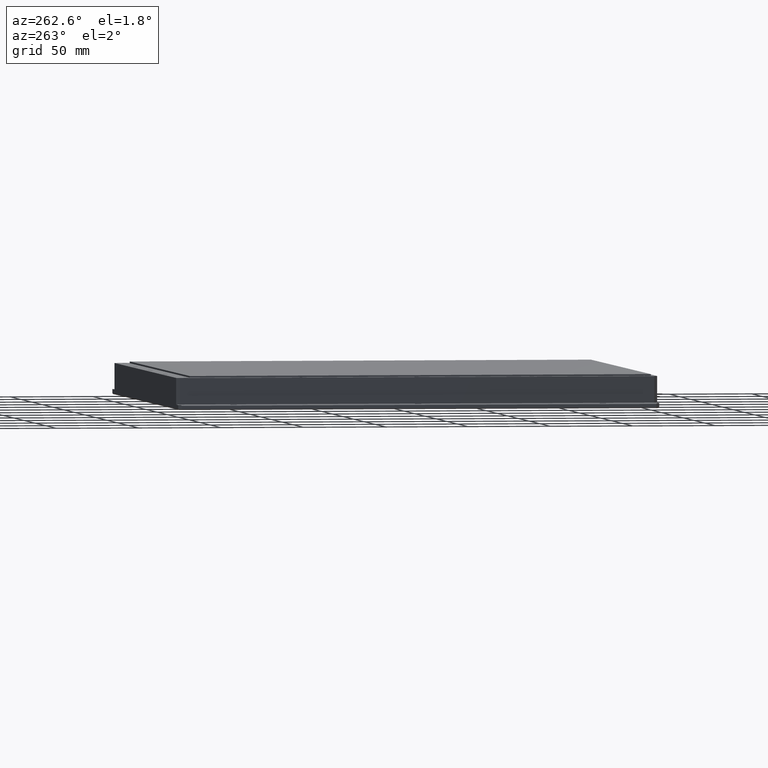
[diagram: clean part render]
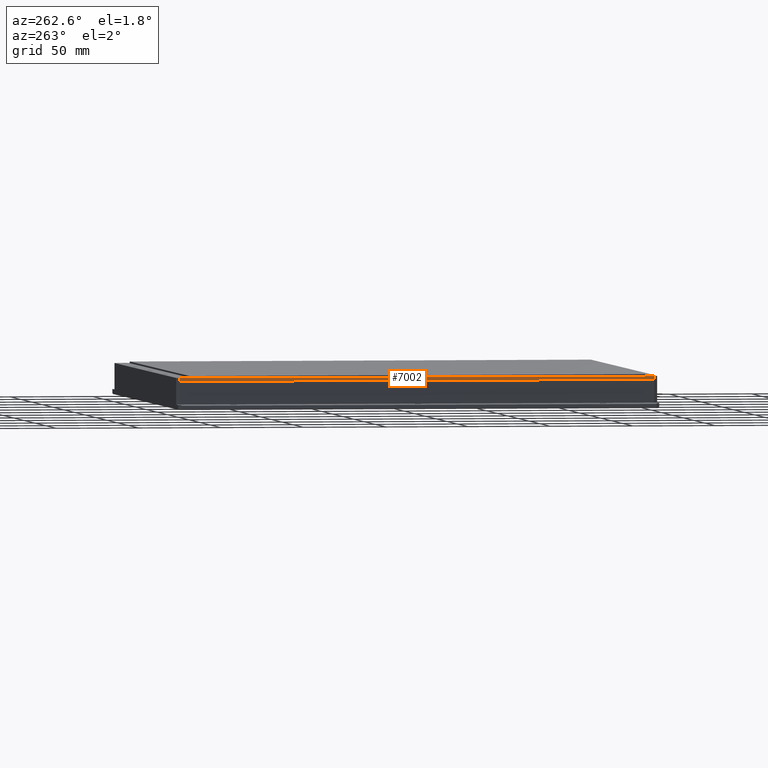
[diagram: same view with one face highlighted and labeled with its STEP entity id]
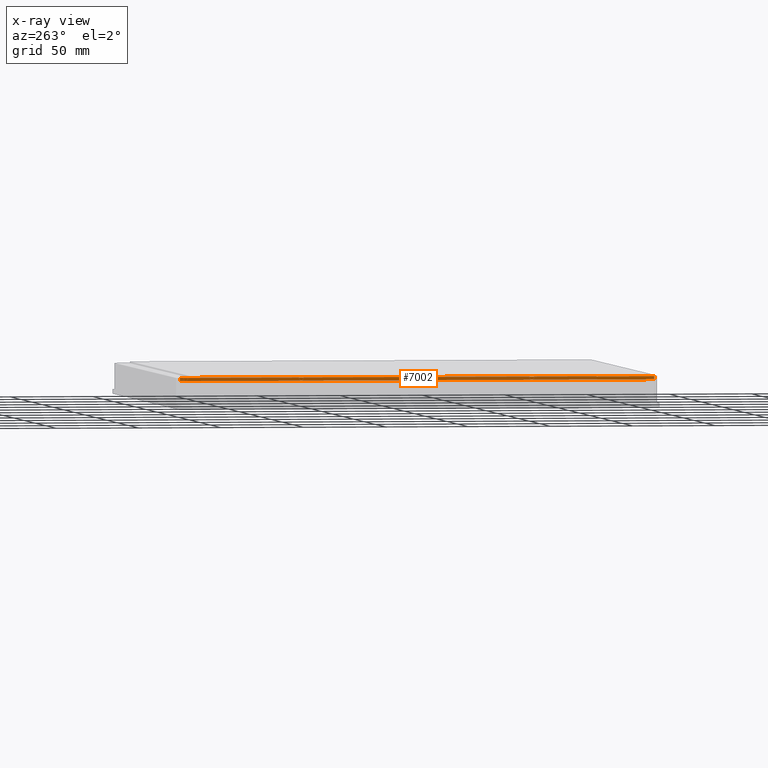
[diagram: x-ray of the same camera — body ghosted, the highlighted face saturated]
A machine part, auxiliary view. The second image highlights one B-rep face of the part: STEP entity #7002.
The next image is the same camera in x-ray: the body ghosted, the highlighted face saturated — about 0% of this face is hidden behind the body in this view.
In plain terms, the highlighted planar face has unit normal (1, 0, 0).
Its self-contained STEP definition (entity closure, byte-faithful):
#1451 = CARTESIAN_POINT ( 'NONE',  ( -113.0806771263418100, 157.2698045692265800, 8.999999999971805700 ) ) ;
#1771 = CARTESIAN_POINT ( 'NONE',  ( -113.0806771263418400, 157.2698045692265800, 8.999999999971805700 ) ) ;
#3973 = DIRECTION ( 'NONE',  ( -0.0000000000000000000, -0.0000000000000000000, 1.000000000000000000 ) ) ;
#5842 = VERTEX_POINT ( 'NONE', #12011 ) ;
#5898 = LINE ( 'NONE', #1771, #21170 ) ;
#6173 = DIRECTION ( 'NONE',  ( -0.0000000000000000000, -1.000000000000000000, -0.0000000000000000000 ) ) ;
#6326 = CARTESIAN_POINT ( 'NONE',  ( -113.0806771263418400, -132.7301954307733900, 6.999999999971805700 ) ) ;
#6502 = LINE ( 'NONE', #6326, #12550 ) ;
#6721 = EDGE_CURVE ( 'NONE', #16388, #16433, #6502, .T. ) ;
#7002 = ADVANCED_FACE ( 'NONE', ( #23773 ), #19979, .F. ) ;
#7193 = ORIENTED_EDGE ( 'NONE', *, *, #14772, .F. ) ;
#7394 = DIRECTION ( 'NONE',  ( -0.0000000000000000000, -1.000000000000000000, -0.0000000000000000000 ) ) ;
#7495 = CARTESIAN_POINT ( 'NONE',  ( -113.0806771263418700, -130.7301954307733600, 6.999999999971805700 ) ) ;
#7607 = VECTOR ( 'NONE', #7394, 1000.000000000000000 ) ;
#7749 = EDGE_CURVE ( 'NONE', #14622, #5842, #14556, .T. ) ;
#9456 = CARTESIAN_POINT ( 'NONE',  ( -113.0806771263418400, 159.2698045692265800, 8.999999999971805700 ) ) ;
#10002 = VECTOR ( 'NONE', #16109, 1000.000000000000000 ) ;
#11129 = LINE ( 'NONE', #23458, #10002 ) ;
#12011 = CARTESIAN_POINT ( 'NONE',  ( -113.0806771263418400, -130.7301954307733600, 8.999999999971805700 ) ) ;
#12550 = VECTOR ( 'NONE', #6173, 1000.000000000000000 ) ;
#12683 = EDGE_CURVE ( 'NONE', #5842, #16433, #11129, .T. ) ;
#12917 = DIRECTION ( 'NONE',  ( 0.0000000000000000000, 0.0000000000000000000, -1.000000000000000000 ) ) ;
#13196 = EDGE_LOOP ( 'NONE', ( #7193, #23261, #22429, #18932 ) ) ;
#14556 = LINE ( 'NONE', #18435, #7607 ) ;
#14622 = VERTEX_POINT ( 'NONE', #1451 ) ;
#14772 = EDGE_CURVE ( 'NONE', #16388, #14622, #5898, .T. ) ;
#16109 = DIRECTION ( 'NONE',  ( 0.0000000000000000000, 0.0000000000000000000, -1.000000000000000000 ) ) ;
#16388 = VERTEX_POINT ( 'NONE', #23924 ) ;
#16433 = VERTEX_POINT ( 'NONE', #7495 ) ;
#16544 = DIRECTION ( 'NONE',  ( 1.000000000000000000, 0.0000000000000000000, 0.0000000000000000000 ) ) ;
#18435 = CARTESIAN_POINT ( 'NONE',  ( -113.0806771263418400, 159.2698045692265800, 8.999999999971805700 ) ) ;
#18932 = ORIENTED_EDGE ( 'NONE', *, *, #7749, .F. ) ;
#19979 = PLANE ( 'NONE',  #22518 ) ;
#21170 = VECTOR ( 'NONE', #3973, 1000.000000000000000 ) ;
#22429 = ORIENTED_EDGE ( 'NONE', *, *, #12683, .F. ) ;
#22518 = AXIS2_PLACEMENT_3D ( 'NONE', #9456, #16544, #12917 ) ;
#23261 = ORIENTED_EDGE ( 'NONE', *, *, #6721, .T. ) ;
#23458 = CARTESIAN_POINT ( 'NONE',  ( -113.0806771263418400, -130.7301954307733100, 8.999999999971805700 ) ) ;
#23773 = FACE_OUTER_BOUND ( 'NONE', #13196, .T. ) ;
#23924 = CARTESIAN_POINT ( 'NONE',  ( -113.0806771263418100, 157.2698045692265800, 6.999999999971804800 ) ) ;